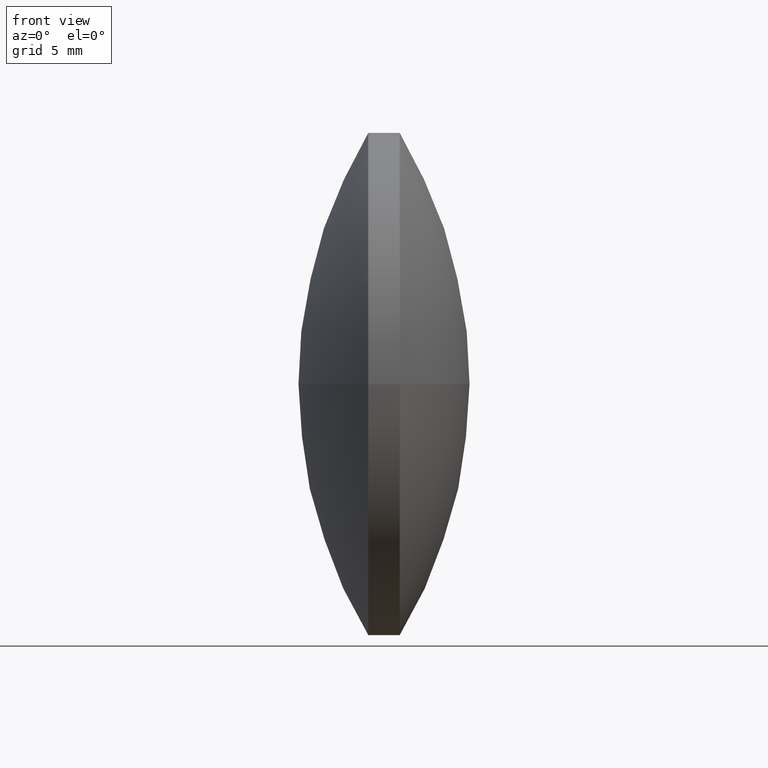
[diagram: clean part render]
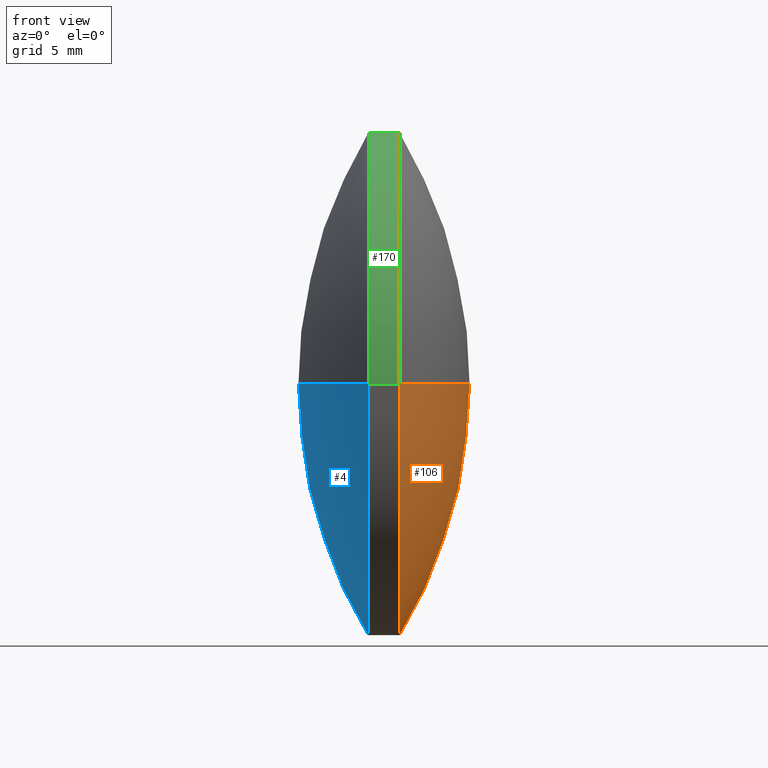
[diagram: same view with three faces highlighted in distinct colors, each labeled with its STEP entity id]
A machine part, front view with three faces highlighted in distinct colors.
Their STEP definitions:

[orange] entity #106 — the highlighted spherical surface has radius 38.841 mm.
#2 = AXIS2_PLACEMENT_3D ( 'NONE', #222, #244, #138 ) ;
#9 = EDGE_LOOP ( 'NONE', ( #47, #64, #109 ) ) ;
#10 = AXIS2_PLACEMENT_3D ( 'NONE', #67, #297, #136 ) ;
#33 = CIRCLE ( 'NONE', #2, 38.84103020739405600 ) ;
#39 = FACE_OUTER_BOUND ( 'NONE', #9, .T. ) ;
#45 = EDGE_CURVE ( 'NONE', #241, #53, #33, .T. ) ;
#47 = ORIENTED_EDGE ( 'NONE', *, *, #45, .F. ) ;
#53 = VERTEX_POINT ( 'NONE', #295 ) ;
#54 = EDGE_CURVE ( 'NONE', #53, #176, #151, .T. ) ;
#64 = ORIENTED_EDGE ( 'NONE', *, *, #153, .T. ) ;
#67 = CARTESIAN_POINT ( 'NONE',  ( 137.4046358656097500, 76.56080791052686200, 0.0000000000000000000 ) ) ;
#69 = CARTESIAN_POINT ( 'NONE',  ( 104.1086056582155900, 76.56080791052680500, 0.0000000000000000000 ) ) ;
#70 = DIRECTION ( 'NONE',  ( -0.0000000000000000000, 0.0000000000000000000, -1.000000000000000000 ) ) ;
#75 = CARTESIAN_POINT ( 'NONE',  ( 142.9496358656096500, 76.56080791052687600, 0.0000000000000000000 ) ) ;
#106 = ADVANCED_FACE ( 'NONE', ( #39 ), #239, .T. ) ;
#109 = ORIENTED_EDGE ( 'NONE', *, *, #54, .F. ) ;
#118 = CARTESIAN_POINT ( 'NONE',  ( 104.1086056582155900, 76.56080791052680500, 0.0000000000000000000 ) ) ;
#119 = DIRECTION ( 'NONE',  ( -1.786485545531768000E-015, 1.000000000000000000, 0.0000000000000000000 ) ) ;
#136 = DIRECTION ( 'NONE',  ( 1.387778780781449400E-015, -1.000000000000000000, 0.0000000000000000000 ) ) ;
#138 = DIRECTION ( 'NONE',  ( 1.000000000000000000, 0.0000000000000000000, 0.0000000000000000000 ) ) ;
#151 = CIRCLE ( 'NONE', #10, 19.99999999999994700 ) ;
#153 = EDGE_CURVE ( 'NONE', #241, #176, #280, .T. ) ;
#176 = VERTEX_POINT ( 'NONE', #245 ) ;
#180 = DIRECTION ( 'NONE',  ( 0.0000000000000000000, 1.000000000000000000, 1.224646799147353500E-016 ) ) ;
#185 = AXIS2_PLACEMENT_3D ( 'NONE', #69, #246, #180 ) ;
#203 = AXIS2_PLACEMENT_3D ( 'NONE', #118, #70, #119 ) ;
#222 = CARTESIAN_POINT ( 'NONE',  ( 104.1086056582155900, 76.56080791052680500, 0.0000000000000000000 ) ) ;
#239 = SPHERICAL_SURFACE ( 'NONE', #203, 38.84103020739407000 ) ;
#241 = VERTEX_POINT ( 'NONE', #75 ) ;
#244 = DIRECTION ( 'NONE',  ( -0.0000000000000000000, 0.0000000000000000000, 1.000000000000000000 ) ) ;
#245 = CARTESIAN_POINT ( 'NONE',  ( 137.4046358656097800, 56.56080791052694000, -2.449293598294696300E-015 ) ) ;
#246 = DIRECTION ( 'NONE',  ( -2.121372077364490100E-031, 1.224646799147353200E-016, -1.000000000000000000 ) ) ;
#280 = CIRCLE ( 'NONE', #185, 38.84103020739407000 ) ;
#295 = CARTESIAN_POINT ( 'NONE',  ( 137.4046358656097200, 96.56080791052676200, 0.0000000000000000000 ) ) ;
#297 = DIRECTION ( 'NONE',  ( -1.000000000000000000, -1.732231757631238700E-015, -0.0000000000000000000 ) ) ;

[blue] entity #4 — the highlighted spherical surface has radius 38.841 mm.
#4 = ADVANCED_FACE ( 'NONE', ( #157 ), #17, .T. ) ;
#12 = CIRCLE ( 'NONE', #266, 38.84103020739382100 ) ;
#17 = SPHERICAL_SURFACE ( 'NONE', #104, 38.84103020739382100 ) ;
#35 = CIRCLE ( 'NONE', #261, 38.84103020739382100 ) ;
#46 = CARTESIAN_POINT ( 'NONE',  ( 134.9046358656097800, 56.56080791052689700, -2.449293598294701800E-015 ) ) ;
#51 = DIRECTION ( 'NONE',  ( -1.000000000000000000, -1.732231757631238700E-015, -0.0000000000000000000 ) ) ;
#76 = CARTESIAN_POINT ( 'NONE',  ( 168.2006660730035600, 76.56080791052691800, 0.0000000000000000000 ) ) ;
#77 = ORIENTED_EDGE ( 'NONE', *, *, #190, .T. ) ;
#79 = DIRECTION ( 'NONE',  ( 1.387778780781449400E-015, -1.000000000000000000, 0.0000000000000000000 ) ) ;
#91 = CARTESIAN_POINT ( 'NONE',  ( 168.2006660730035600, 76.56080791052691800, 0.0000000000000000000 ) ) ;
#92 = DIRECTION ( 'NONE',  ( -0.0000000000000000000, 0.0000000000000000000, -1.000000000000000000 ) ) ;
#101 = DIRECTION ( 'NONE',  ( 1.000000000000000000, 0.0000000000000000000, 0.0000000000000000000 ) ) ;
#104 = AXIS2_PLACEMENT_3D ( 'NONE', #91, #92, #224 ) ;
#124 = DIRECTION ( 'NONE',  ( -2.121372077364490100E-031, 1.224646799147353200E-016, -1.000000000000000000 ) ) ;
#127 = CARTESIAN_POINT ( 'NONE',  ( 134.9046358656097200, 96.56080791052681900, 0.0000000000000000000 ) ) ;
#143 = CARTESIAN_POINT ( 'NONE',  ( 134.9046358656097500, 76.56080791052686200, 0.0000000000000000000 ) ) ;
#157 = FACE_OUTER_BOUND ( 'NONE', #189, .T. ) ;
#163 = CARTESIAN_POINT ( 'NONE',  ( 168.2006660730035600, 76.56080791052691800, 0.0000000000000000000 ) ) ;
#177 = ORIENTED_EDGE ( 'NONE', *, *, #254, .T. ) ;
#189 = EDGE_LOOP ( 'NONE', ( #77, #177, #207 ) ) ;
#190 = EDGE_CURVE ( 'NONE', #236, #283, #263, .T. ) ;
#207 = ORIENTED_EDGE ( 'NONE', *, *, #287, .F. ) ;
#224 = DIRECTION ( 'NONE',  ( -1.429188436425423700E-015, 1.000000000000000000, 0.0000000000000000000 ) ) ;
#234 = DIRECTION ( 'NONE',  ( -0.0000000000000000000, 0.0000000000000000000, 1.000000000000000000 ) ) ;
#236 = VERTEX_POINT ( 'NONE', #127 ) ;
#254 = EDGE_CURVE ( 'NONE', #283, #286, #35, .T. ) ;
#261 = AXIS2_PLACEMENT_3D ( 'NONE', #163, #124, #275 ) ;
#263 = CIRCLE ( 'NONE', #299, 19.99999999999994700 ) ;
#266 = AXIS2_PLACEMENT_3D ( 'NONE', #76, #234, #101 ) ;
#275 = DIRECTION ( 'NONE',  ( 0.0000000000000000000, 1.000000000000000000, 1.224646799147353200E-016 ) ) ;
#283 = VERTEX_POINT ( 'NONE', #46 ) ;
#286 = VERTEX_POINT ( 'NONE', #301 ) ;
#287 = EDGE_CURVE ( 'NONE', #236, #286, #12, .T. ) ;
#299 = AXIS2_PLACEMENT_3D ( 'NONE', #143, #51, #79 ) ;
#301 = CARTESIAN_POINT ( 'NONE',  ( 129.3596358656097300, 76.56080791052684700, 0.0000000000000000000 ) ) ;

[green] entity #170 — the highlighted cylindrical surface (partial cylindrical patch) has radius 20 mm, axis along (-1, -0, -0).
#1 = CIRCLE ( 'NONE', #292, 19.99999999999994700 ) ;
#16 = DIRECTION ( 'NONE',  ( -1.000000000000000000, -1.732231757631238700E-015, -0.0000000000000000000 ) ) ;
#23 = CARTESIAN_POINT ( 'NONE',  ( 104.1086056582156200, 56.56080791052685400, 0.0000000000000000000 ) ) ;
#36 = EDGE_CURVE ( 'NONE', #283, #236, #1, .T. ) ;
#42 = CARTESIAN_POINT ( 'NONE',  ( 104.1086056582155700, 96.56080791052674800, 2.449293598294700200E-015 ) ) ;
#46 = CARTESIAN_POINT ( 'NONE',  ( 134.9046358656097800, 56.56080791052689700, -2.449293598294701800E-015 ) ) ;
#53 = VERTEX_POINT ( 'NONE', #295 ) ;
#68 = VECTOR ( 'NONE', #268, 1000.000000000000000 ) ;
#72 = CIRCLE ( 'NONE', #209, 19.99999999999994700 ) ;
#85 = ORIENTED_EDGE ( 'NONE', *, *, #36, .F. ) ;
#89 = FACE_OUTER_BOUND ( 'NONE', #215, .T. ) ;
#111 = EDGE_CURVE ( 'NONE', #53, #236, #128, .T. ) ;
#112 = ORIENTED_EDGE ( 'NONE', *, *, #248, .F. ) ;
#115 = DIRECTION ( 'NONE',  ( 1.387778780781449400E-015, -1.000000000000000000, 0.0000000000000000000 ) ) ;
#116 = CARTESIAN_POINT ( 'NONE',  ( 134.9046358656097500, 76.56080791052686200, 0.0000000000000000000 ) ) ;
#127 = CARTESIAN_POINT ( 'NONE',  ( 134.9046358656097200, 96.56080791052681900, 0.0000000000000000000 ) ) ;
#128 = LINE ( 'NONE', #42, #68 ) ;
#139 = CARTESIAN_POINT ( 'NONE',  ( 137.4046358656097500, 76.56080791052686200, 0.0000000000000000000 ) ) ;
#168 = EDGE_CURVE ( 'NONE', #176, #53, #72, .T. ) ;
#170 = ADVANCED_FACE ( 'NONE', ( #89 ), #302, .T. ) ;
#172 = VECTOR ( 'NONE', #251, 1000.000000000000000 ) ;
#176 = VERTEX_POINT ( 'NONE', #245 ) ;
#191 = ORIENTED_EDGE ( 'NONE', *, *, #111, .T. ) ;
#194 = ORIENTED_EDGE ( 'NONE', *, *, #168, .T. ) ;
#202 = CARTESIAN_POINT ( 'NONE',  ( 104.1086056582155900, 76.56080791052680500, 0.0000000000000000000 ) ) ;
#209 = AXIS2_PLACEMENT_3D ( 'NONE', #139, #16, #115 ) ;
#215 = EDGE_LOOP ( 'NONE', ( #194, #191, #85, #112 ) ) ;
#219 = AXIS2_PLACEMENT_3D ( 'NONE', #202, #291, #265 ) ;
#236 = VERTEX_POINT ( 'NONE', #127 ) ;
#245 = CARTESIAN_POINT ( 'NONE',  ( 137.4046358656097800, 56.56080791052694000, -2.449293598294696300E-015 ) ) ;
#247 = LINE ( 'NONE', #23, #172 ) ;
#248 = EDGE_CURVE ( 'NONE', #176, #283, #247, .T. ) ;
#251 = DIRECTION ( 'NONE',  ( -1.000000000000000000, -1.732231757631238700E-015, -0.0000000000000000000 ) ) ;
#264 = DIRECTION ( 'NONE',  ( -1.000000000000000000, -1.732231757631238700E-015, -0.0000000000000000000 ) ) ;
#265 = DIRECTION ( 'NONE',  ( 1.387778780781449400E-015, -1.000000000000000000, 0.0000000000000000000 ) ) ;
#268 = DIRECTION ( 'NONE',  ( -1.000000000000000000, -1.732231757631238700E-015, -0.0000000000000000000 ) ) ;
#283 = VERTEX_POINT ( 'NONE', #46 ) ;
#291 = DIRECTION ( 'NONE',  ( -1.000000000000000000, -1.732231757631238700E-015, -0.0000000000000000000 ) ) ;
#292 = AXIS2_PLACEMENT_3D ( 'NONE', #116, #264, #293 ) ;
#293 = DIRECTION ( 'NONE',  ( 1.387778780781449400E-015, -1.000000000000000000, 0.0000000000000000000 ) ) ;
#295 = CARTESIAN_POINT ( 'NONE',  ( 137.4046358656097200, 96.56080791052676200, 0.0000000000000000000 ) ) ;
#302 = CYLINDRICAL_SURFACE ( 'NONE', #219, 19.99999999999994700 ) ;